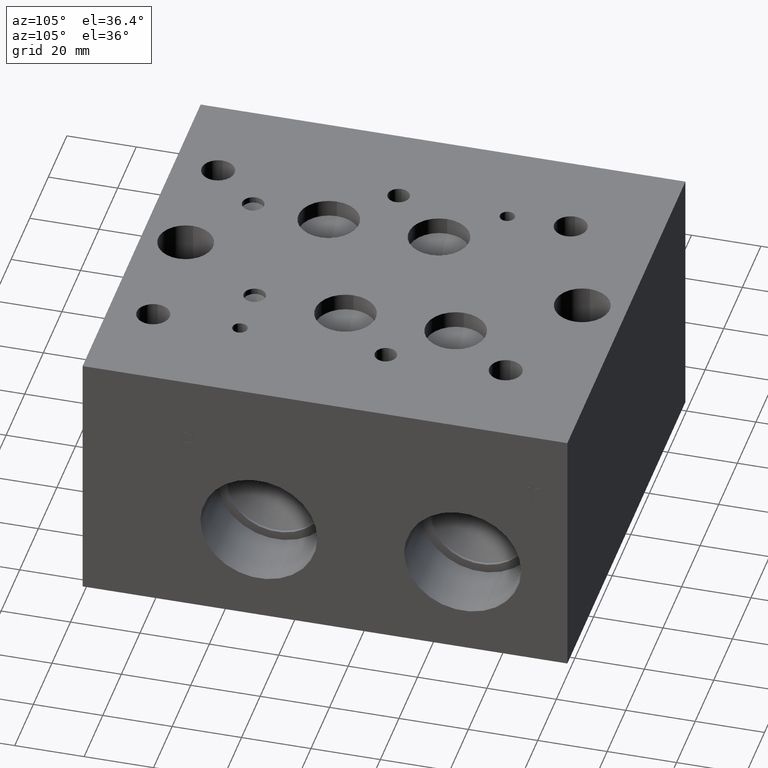
[diagram: clean part render]
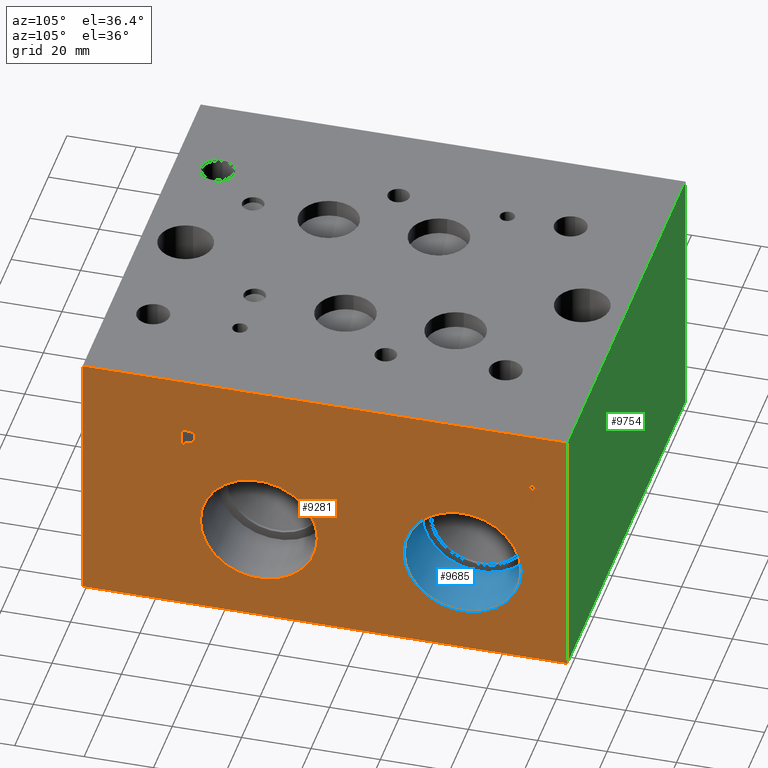
[diagram: same view with three faces highlighted in distinct colors, each labeled with its STEP entity id]
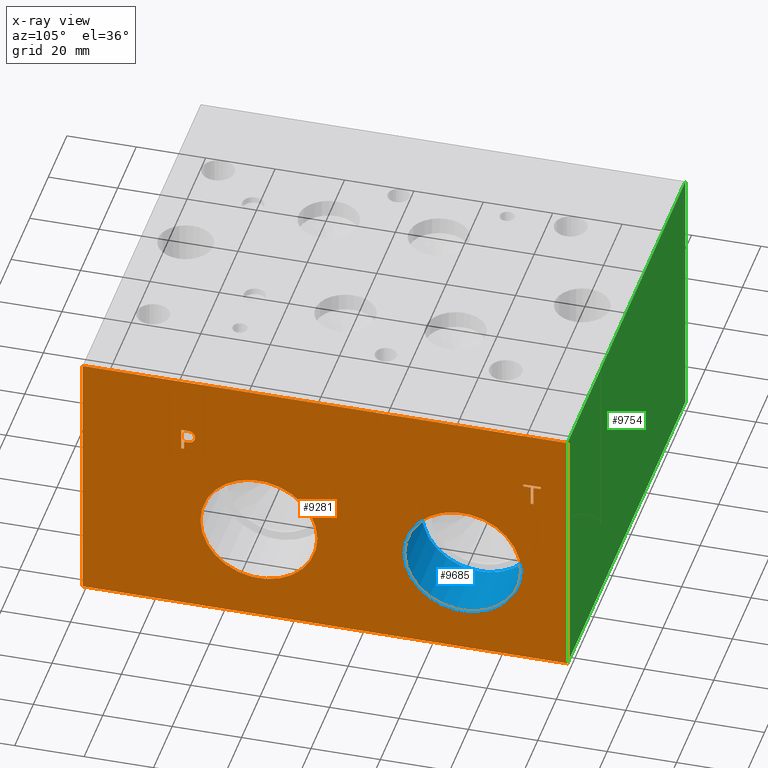
[diagram: x-ray of the same camera — body ghosted, the three highlighted faces saturated]
A machine part, auxiliary view with three faces highlighted in distinct colors.
The next image is the same camera in x-ray (body ghosted, the three faces saturated) — at least one of them is partly hidden behind the body in this view.
Their STEP definitions:

[orange] entity #9281 — the highlighted planar face has unit normal (1, 0, 0).
#70=CIRCLE('',#9783,16.8529);
#71=CIRCLE('',#9784,16.8529);
#72=CIRCLE('',#9785,16.8529);
#73=CIRCLE('',#9786,16.8529);
#199=FACE_BOUND('',#1096,.T.);
#200=FACE_BOUND('',#1097,.T.);
#201=FACE_BOUND('',#1098,.T.);
#202=FACE_BOUND('',#1099,.T.);
#284=PLANE('',#9782);
#599=FACE_OUTER_BOUND('',#1095,.T.);
#1095=EDGE_LOOP('',(#6133,#6134,#6135,#6136));
#1096=EDGE_LOOP('',(#6137,#6138));
#1097=EDGE_LOOP('',(#6139,#6140));
#1098=EDGE_LOOP('',(#6141,#6142,#6143,#6144,#6145,#6146,#6147,#6148));
#1099=EDGE_LOOP('',(#6149,#6150,#6151,#6152,#6153,#6154,#6155,#6156,#6157));
#1665=LINE('',#12330,#2609);
#1668=LINE('',#12336,#2612);
#1671=LINE('',#12342,#2615);
#1674=LINE('',#12348,#2618);
#1677=LINE('',#12354,#2621);
#1681=LINE('',#12397,#2625);
#1682=LINE('',#12399,#2626);
#1683=LINE('',#12401,#2627);
#1684=LINE('',#12402,#2628);
#1685=LINE('',#12413,#2629);
#1686=LINE('',#12415,#2630);
#1687=LINE('',#12417,#2631);
#1688=LINE('',#12419,#2632);
#1689=LINE('',#12421,#2633);
#1690=LINE('',#12423,#2634);
#1691=LINE('',#12425,#2635);
#1692=LINE('',#12426,#2636);
#2609=VECTOR('',#10290,10.);
#2612=VECTOR('',#10295,10.);
#2615=VECTOR('',#10300,10.);
#2618=VECTOR('',#10305,10.);
#2621=VECTOR('',#10310,10.);
#2625=VECTOR('',#10318,10.);
#2626=VECTOR('',#10319,10.);
#2627=VECTOR('',#10320,10.);
#2628=VECTOR('',#10321,10.);
#2629=VECTOR('',#10330,10.);
#2630=VECTOR('',#10331,10.);
#2631=VECTOR('',#10332,10.);
#2632=VECTOR('',#10333,10.);
#2633=VECTOR('',#10334,10.);
#2634=VECTOR('',#10335,10.);
#2635=VECTOR('',#10336,10.);
#2636=VECTOR('',#10337,10.);
#3545=B_SPLINE_CURVE_WITH_KNOTS('',2,(#12297,#12298,#12299,#12300),
 .UNSPECIFIED.,.F.,.F.,(3,1,3),(0.,1.,2.),.UNSPECIFIED.);
#3547=B_SPLINE_CURVE_WITH_KNOTS('',2,(#12318,#12319,#12320,#12321),
 .UNSPECIFIED.,.F.,.F.,(3,1,3),(0.,1.,2.),.UNSPECIFIED.);
#3549=B_SPLINE_CURVE_WITH_KNOTS('',2,(#12367,#12368,#12369,#12370),
 .UNSPECIFIED.,.F.,.F.,(3,1,3),(0.,1.,2.),.UNSPECIFIED.);
#3551=B_SPLINE_CURVE_WITH_KNOTS('',2,(#12385,#12386,#12387,#12388),
 .UNSPECIFIED.,.F.,.F.,(3,1,3),(0.,1.,2.),.UNSPECIFIED.);
#3815=VERTEX_POINT('',#12295);
#3816=VERTEX_POINT('',#12296);
#3819=VERTEX_POINT('',#12317);
#3821=VERTEX_POINT('',#12329);
#3823=VERTEX_POINT('',#12335);
#3825=VERTEX_POINT('',#12341);
#3827=VERTEX_POINT('',#12347);
#3829=VERTEX_POINT('',#12353);
#3831=VERTEX_POINT('',#12366);
#3833=VERTEX_POINT('',#12395);
#3834=VERTEX_POINT('',#12396);
#3835=VERTEX_POINT('',#12398);
#3836=VERTEX_POINT('',#12400);
#3837=VERTEX_POINT('',#12403);
#3838=VERTEX_POINT('',#12404);
#3839=VERTEX_POINT('',#12407);
#3840=VERTEX_POINT('',#12408);
#3841=VERTEX_POINT('',#12411);
#3842=VERTEX_POINT('',#12412);
#3843=VERTEX_POINT('',#12414);
#3844=VERTEX_POINT('',#12416);
#3845=VERTEX_POINT('',#12418);
#3846=VERTEX_POINT('',#12420);
#3847=VERTEX_POINT('',#12422);
#3848=VERTEX_POINT('',#12424);
#4738=EDGE_CURVE('',#3815,#3816,#3545,.T.);
#4742=EDGE_CURVE('',#3819,#3815,#3547,.T.);
#4745=EDGE_CURVE('',#3821,#3819,#1665,.T.);
#4748=EDGE_CURVE('',#3823,#3821,#1668,.T.);
#4751=EDGE_CURVE('',#3825,#3823,#1671,.T.);
#4754=EDGE_CURVE('',#3827,#3825,#1674,.T.);
#4757=EDGE_CURVE('',#3829,#3827,#1677,.T.);
#4760=EDGE_CURVE('',#3831,#3829,#3549,.T.);
#4763=EDGE_CURVE('',#3816,#3831,#3551,.T.);
#4765=EDGE_CURVE('',#3833,#3834,#1681,.T.);
#4766=EDGE_CURVE('',#3834,#3835,#1682,.T.);
#4767=EDGE_CURVE('',#3836,#3835,#1683,.T.);
#4768=EDGE_CURVE('',#3833,#3836,#1684,.T.);
#4769=EDGE_CURVE('',#3837,#3838,#70,.T.);
#4770=EDGE_CURVE('',#3838,#3837,#71,.T.);
#4771=EDGE_CURVE('',#3839,#3840,#72,.T.);
#4772=EDGE_CURVE('',#3840,#3839,#73,.T.);
#4773=EDGE_CURVE('',#3841,#3842,#1685,.T.);
#4774=EDGE_CURVE('',#3842,#3843,#1686,.T.);
#4775=EDGE_CURVE('',#3843,#3844,#1687,.T.);
#4776=EDGE_CURVE('',#3844,#3845,#1688,.T.);
#4777=EDGE_CURVE('',#3845,#3846,#1689,.T.);
#4778=EDGE_CURVE('',#3846,#3847,#1690,.T.);
#4779=EDGE_CURVE('',#3847,#3848,#1691,.T.);
#4780=EDGE_CURVE('',#3848,#3841,#1692,.T.);
#6133=ORIENTED_EDGE('',*,*,#4765,.T.);
#6134=ORIENTED_EDGE('',*,*,#4766,.T.);
#6135=ORIENTED_EDGE('',*,*,#4767,.F.);
#6136=ORIENTED_EDGE('',*,*,#4768,.F.);
#6137=ORIENTED_EDGE('',*,*,#4769,.T.);
#6138=ORIENTED_EDGE('',*,*,#4770,.T.);
#6139=ORIENTED_EDGE('',*,*,#4771,.T.);
#6140=ORIENTED_EDGE('',*,*,#4772,.T.);
#6141=ORIENTED_EDGE('',*,*,#4773,.T.);
#6142=ORIENTED_EDGE('',*,*,#4774,.T.);
#6143=ORIENTED_EDGE('',*,*,#4775,.T.);
#6144=ORIENTED_EDGE('',*,*,#4776,.T.);
#6145=ORIENTED_EDGE('',*,*,#4777,.T.);
#6146=ORIENTED_EDGE('',*,*,#4778,.T.);
#6147=ORIENTED_EDGE('',*,*,#4779,.T.);
#6148=ORIENTED_EDGE('',*,*,#4780,.T.);
#6149=ORIENTED_EDGE('',*,*,#4738,.T.);
#6150=ORIENTED_EDGE('',*,*,#4763,.T.);
#6151=ORIENTED_EDGE('',*,*,#4760,.T.);
#6152=ORIENTED_EDGE('',*,*,#4757,.T.);
#6153=ORIENTED_EDGE('',*,*,#4754,.T.);
#6154=ORIENTED_EDGE('',*,*,#4751,.T.);
#6155=ORIENTED_EDGE('',*,*,#4748,.T.);
#6156=ORIENTED_EDGE('',*,*,#4745,.T.);
#6157=ORIENTED_EDGE('',*,*,#4742,.T.);
#9281=ADVANCED_FACE('',(#599,#199,#200,#201,#202),#284,.T.);
#9782=AXIS2_PLACEMENT_3D('',#12394,#10316,#10317);
#9783=AXIS2_PLACEMENT_3D('',#12405,#10322,#10323);
#9784=AXIS2_PLACEMENT_3D('',#12406,#10324,#10325);
#9785=AXIS2_PLACEMENT_3D('',#12409,#10326,#10327);
#9786=AXIS2_PLACEMENT_3D('',#12410,#10328,#10329);
#10290=DIRECTION('',(0.,1.,0.));
#10295=DIRECTION('',(0.,0.,1.));
#10300=DIRECTION('',(0.,-1.,0.));
#10305=DIRECTION('',(0.,0.,-1.));
#10310=DIRECTION('',(0.,-1.,0.));
#10316=DIRECTION('center_axis',(1.,0.,0.));
#10317=DIRECTION('ref_axis',(0.,1.,0.));
#10318=DIRECTION('',(0.,1.,0.));
#10319=DIRECTION('',(0.,0.,1.));
#10320=DIRECTION('',(0.,1.,0.));
#10321=DIRECTION('',(0.,0.,1.));
#10322=DIRECTION('center_axis',(-1.,0.,0.));
#10323=DIRECTION('ref_axis',(0.,1.,0.));
#10324=DIRECTION('center_axis',(-1.,0.,0.));
#10325=DIRECTION('ref_axis',(0.,1.,0.));
#10326=DIRECTION('center_axis',(-1.,0.,0.));
#10327=DIRECTION('ref_axis',(0.,1.,0.));
#10328=DIRECTION('center_axis',(-1.,0.,0.));
#10329=DIRECTION('ref_axis',(0.,1.,0.));
#10330=DIRECTION('',(0.,-1.,0.));
#10331=DIRECTION('',(0.,0.,1.));
#10332=DIRECTION('',(0.,-1.,0.));
#10333=DIRECTION('',(0.,0.,1.));
#10334=DIRECTION('',(0.,1.,0.));
#10335=DIRECTION('',(0.,0.,-1.));
#10336=DIRECTION('',(0.,-1.,0.));
#10337=DIRECTION('',(0.,0.,-1.));
#12295=CARTESIAN_POINT('',(127.,31.6818172023594,59.1350181439707));
#12296=CARTESIAN_POINT('',(127.,32.438259654532,57.616987372604));
#12297=CARTESIAN_POINT('Ctrl Pts',(127.,31.6818172023594,59.1350181439707));
#12298=CARTESIAN_POINT('Ctrl Pts',(127.,32.0368820268486,58.8931623939564));
#12299=CARTESIAN_POINT('Ctrl Pts',(127.,32.438259654532,58.1470116758269));
#12300=CARTESIAN_POINT('Ctrl Pts',(127.,32.438259654532,57.616987372604));
#12317=CARTESIAN_POINT('',(127.,30.0197021543883,59.5312499046326));
#12318=CARTESIAN_POINT('Ctrl Pts',(127.,30.0197021543883,59.5312499046326));
#12319=CARTESIAN_POINT('Ctrl Pts',(127.,30.5857475267624,59.5312499046326));
#12320=CARTESIAN_POINT('Ctrl Pts',(127.,31.378211048086,59.3459986918556));
#12321=CARTESIAN_POINT('Ctrl Pts',(127.,31.6818172023594,59.1350181439707));
#12329=CARTESIAN_POINT('',(127.,28.4244833776978,59.5312499046326));
#12330=CARTESIAN_POINT('',(127.,14.2122416888489,59.5312499046326));
#12335=CARTESIAN_POINT('',(127.,28.4244833776978,53.18125));
#12336=CARTESIAN_POINT('',(127.,28.4244833776978,26.590625));
#12341=CARTESIAN_POINT('',(127.,29.2684055692373,53.18125));
#12342=CARTESIAN_POINT('',(127.,14.6342027846186,53.18125));
#12347=CARTESIAN_POINT('',(127.,29.2684055692373,55.5483488299279));
#12348=CARTESIAN_POINT('',(127.,29.2684055692373,27.7741744149639));
#12353=CARTESIAN_POINT('',(127.,29.9836810852372,55.5483488299279));
#12354=CARTESIAN_POINT('',(127.,14.9918405426186,55.5483488299279));
#12366=CARTESIAN_POINT('',(127.,31.8825060162011,56.2070198086904));
#12367=CARTESIAN_POINT('Ctrl Pts',(127.,31.8825060162011,56.2070198086904));
#12368=CARTESIAN_POINT('Ctrl Pts',(127.,31.5531705268198,55.8828301863307));
#12369=CARTESIAN_POINT('Ctrl Pts',(127.,30.6629355320861,55.5483488299279));
#12370=CARTESIAN_POINT('Ctrl Pts',(127.,29.9836810852372,55.5483488299279));
#12385=CARTESIAN_POINT('Ctrl Pts',(127.,32.438259654532,57.616987372604));
#12386=CARTESIAN_POINT('Ctrl Pts',(127.,32.438259654532,57.2053180108774));
#12387=CARTESIAN_POINT('Ctrl Pts',(127.,32.1449452343018,56.4643131597695));
#12388=CARTESIAN_POINT('Ctrl Pts',(127.,31.8825060162011,56.2070198086904));
#12394=CARTESIAN_POINT('Origin',(127.,0.,0.));
#12395=CARTESIAN_POINT('',(127.,0.,0.));
#12396=CARTESIAN_POINT('',(127.,139.7,0.));
#12397=CARTESIAN_POINT('',(127.,0.,0.));
#12398=CARTESIAN_POINT('',(127.,139.7,76.2));
#12399=CARTESIAN_POINT('',(127.,139.7,0.));
#12400=CARTESIAN_POINT('',(127.,0.,76.2));
#12401=CARTESIAN_POINT('',(127.,0.,76.2));
#12402=CARTESIAN_POINT('',(127.,0.,0.));
#12403=CARTESIAN_POINT('',(127.,67.6529,29.3624));
#12404=CARTESIAN_POINT('',(127.,33.9471,29.3624));
#12405=CARTESIAN_POINT('Origin',(127.,50.8,29.3624));
#12406=CARTESIAN_POINT('Origin',(127.,50.8,29.3624));
#12407=CARTESIAN_POINT('',(127.,126.3777,29.3624));
#12408=CARTESIAN_POINT('',(127.,92.6719,29.3624));
#12409=CARTESIAN_POINT('Origin',(127.,109.5248,29.3624));
#12410=CARTESIAN_POINT('Origin',(127.,109.5248,29.3624));
#12411=CARTESIAN_POINT('',(127.,129.969165271453,53.18125));
#12412=CARTESIAN_POINT('',(127.,129.125243079914,53.18125));
#12413=CARTESIAN_POINT('',(127.,64.9845826357265,53.18125));
#12414=CARTESIAN_POINT('',(127.,129.125243079914,58.7799533194816));
#12415=CARTESIAN_POINT('',(127.,129.125243079914,26.590625));
#12416=CARTESIAN_POINT('',(127.,126.994854132978,58.7799533194816));
#12417=CARTESIAN_POINT('',(127.,64.5626215399568,58.7799533194816));
#12418=CARTESIAN_POINT('',(127.,126.994854132978,59.5312499046326));
#12419=CARTESIAN_POINT('',(127.,126.994854132978,29.3899766597408));
#12420=CARTESIAN_POINT('',(127.,132.099554218388,59.5312499046326));
#12421=CARTESIAN_POINT('',(127.,63.4974270664892,59.5312499046326));
#12422=CARTESIAN_POINT('',(127.,132.099554218388,58.7799533194816));
#12423=CARTESIAN_POINT('',(127.,132.099554218388,29.7656249523163));
#12424=CARTESIAN_POINT('',(127.,129.969165271453,58.7799533194816));
#12425=CARTESIAN_POINT('',(127.,66.049777109194,58.7799533194816));
#12426=CARTESIAN_POINT('',(127.,129.969165271453,29.3899766597408));

[blue] entity #9685 — the highlighted cylindrical surface (bore or boss wall) has radius 16.8529 mm, axis along (1, 0, 0).
#14=CYLINDRICAL_SURFACE('',#10079,16.8529);
#72=CIRCLE('',#9785,16.8529);
#73=CIRCLE('',#9786,16.8529);
#84=CIRCLE('',#10076,16.8529);
#85=CIRCLE('',#10077,16.8529);
#1003=FACE_OUTER_BOUND('',#1544,.T.);
#1544=EDGE_LOOP('',(#8351,#8352,#8353,#8354,#8355,#8356));
#2536=LINE('',#16285,#3480);
#3480=VECTOR('',#11767,16.8529);
#3839=VERTEX_POINT('',#12407);
#3840=VERTEX_POINT('',#12408);
#4584=VERTEX_POINT('',#16278);
#4585=VERTEX_POINT('',#16279);
#4771=EDGE_CURVE('',#3839,#3840,#72,.T.);
#4772=EDGE_CURVE('',#3840,#3839,#73,.T.);
#5882=EDGE_CURVE('',#4584,#4585,#84,.T.);
#5883=EDGE_CURVE('',#4585,#4584,#85,.T.);
#5885=EDGE_CURVE('',#3840,#4585,#2536,.T.);
#8351=ORIENTED_EDGE('',*,*,#4771,.F.);
#8352=ORIENTED_EDGE('',*,*,#4772,.F.);
#8353=ORIENTED_EDGE('',*,*,#5885,.T.);
#8354=ORIENTED_EDGE('',*,*,#5882,.F.);
#8355=ORIENTED_EDGE('',*,*,#5883,.F.);
#8356=ORIENTED_EDGE('',*,*,#5885,.F.);
#9685=ADVANCED_FACE('',(#1003),#14,.F.);
#9785=AXIS2_PLACEMENT_3D('',#12409,#10326,#10327);
#9786=AXIS2_PLACEMENT_3D('',#12410,#10328,#10329);
#10076=AXIS2_PLACEMENT_3D('',#16280,#11759,#11760);
#10077=AXIS2_PLACEMENT_3D('',#16281,#11761,#11762);
#10079=AXIS2_PLACEMENT_3D('',#16284,#11765,#11766);
#10326=DIRECTION('center_axis',(-1.,0.,0.));
#10327=DIRECTION('ref_axis',(0.,1.,0.));
#10328=DIRECTION('center_axis',(-1.,0.,0.));
#10329=DIRECTION('ref_axis',(0.,1.,0.));
#11759=DIRECTION('center_axis',(1.,0.,0.));
#11760=DIRECTION('ref_axis',(0.,1.,0.));
#11761=DIRECTION('center_axis',(1.,0.,0.));
#11762=DIRECTION('ref_axis',(0.,1.,0.));
#11765=DIRECTION('center_axis',(1.,0.,0.));
#11766=DIRECTION('ref_axis',(0.,1.,0.));
#11767=DIRECTION('',(-1.,0.,0.));
#12407=CARTESIAN_POINT('',(127.,126.3777,29.3624));
#12408=CARTESIAN_POINT('',(127.,92.6719,29.3624));
#12409=CARTESIAN_POINT('Origin',(127.,109.5248,29.3624));
#12410=CARTESIAN_POINT('Origin',(127.,109.5248,29.3624));
#16278=CARTESIAN_POINT('',(108.0008,126.3777,29.3624));
#16279=CARTESIAN_POINT('',(108.0008,92.6719,29.3624));
#16280=CARTESIAN_POINT('Origin',(108.0008,109.5248,29.3624));
#16281=CARTESIAN_POINT('Origin',(108.0008,109.5248,29.3624));
#16284=CARTESIAN_POINT('Origin',(117.5004,109.5248,29.3624));
#16285=CARTESIAN_POINT('',(117.5004,92.6719,29.3624));

[green] entity #9754 — the highlighted planar face has unit normal (0, 1, 0).
#577=PLANE('',#10259);
#1072=FACE_OUTER_BOUND('',#1626,.T.);
#1626=EDGE_LOOP('',(#8669,#8670,#8671,#8672));
#1682=LINE('',#12399,#2626);
#2501=LINE('',#16192,#3445);
#2591=LINE('',#16650,#3535);
#2592=LINE('',#16651,#3536);
#2626=VECTOR('',#10319,10.);
#3445=VECTOR('',#11680,10.);
#3535=VECTOR('',#12182,10.);
#3536=VECTOR('',#12183,10.);
#3834=VERTEX_POINT('',#12396);
#3835=VERTEX_POINT('',#12398);
#4553=VERTEX_POINT('',#16188);
#4554=VERTEX_POINT('',#16190);
#4766=EDGE_CURVE('',#3834,#3835,#1682,.T.);
#5841=EDGE_CURVE('',#4553,#4554,#2501,.T.);
#6051=EDGE_CURVE('',#3834,#4553,#2591,.T.);
#6052=EDGE_CURVE('',#3835,#4554,#2592,.T.);
#8669=ORIENTED_EDGE('',*,*,#6051,.T.);
#8670=ORIENTED_EDGE('',*,*,#5841,.T.);
#8671=ORIENTED_EDGE('',*,*,#6052,.F.);
#8672=ORIENTED_EDGE('',*,*,#4766,.F.);
#9754=ADVANCED_FACE('',(#1072),#577,.T.);
#10259=AXIS2_PLACEMENT_3D('',#16649,#12180,#12181);
#10319=DIRECTION('',(0.,0.,1.));
#11680=DIRECTION('',(0.,0.,1.));
#12180=DIRECTION('center_axis',(0.,1.,0.));
#12181=DIRECTION('ref_axis',(-1.,0.,0.));
#12182=DIRECTION('',(-1.,0.,0.));
#12183=DIRECTION('',(-1.,0.,0.));
#12396=CARTESIAN_POINT('',(127.,139.7,0.));
#12398=CARTESIAN_POINT('',(127.,139.7,76.2));
#12399=CARTESIAN_POINT('',(127.,139.7,0.));
#16188=CARTESIAN_POINT('',(0.,139.7,0.));
#16190=CARTESIAN_POINT('',(0.,139.7,76.2));
#16192=CARTESIAN_POINT('',(0.,139.7,0.));
#16649=CARTESIAN_POINT('Origin',(127.,139.7,0.));
#16650=CARTESIAN_POINT('',(127.,139.7,0.));
#16651=CARTESIAN_POINT('',(127.,139.7,76.2));